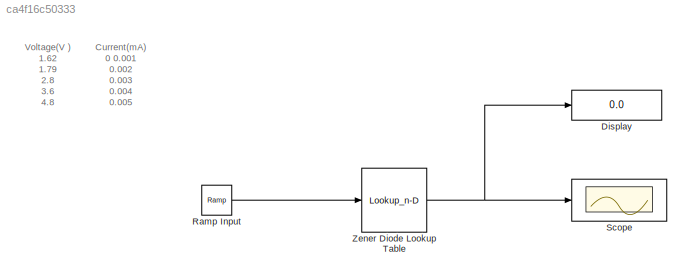
MODEL slx_ca4f16c50333
KIND model
CONFIG AbsTol = auto
CONFIG EnableMultiTasking = off
CONFIG FixedStep = 1
CONFIG MaxStep = auto
CONFIG MinStep = auto
CONFIG RelTol = 1e-3
CONFIG SampleTimeConstraint = Unconstrained
CONFIG Solver = FixedStepAuto
CONFIG SolverName = FixedStepAuto
CONFIG StartTime = 0.0
CONFIG StopTime = 10.0
BLOCK [Reference]  Ramp Input  REF=simulink/Sources/Ramp
  Ports = [0, 1]
  SourceBlock = simulink/Sources/Ramp
  SourceProductBaseCode = SL
  SourceType = Ramp
BLOCK [Display] Display
  Decimation = 1
  Ports = [1]
BLOCK [Scope] Scope
  Floating = off
  NumInputPorts = 1
  Ports = [1]
  ScopeSpecificationString = Simulink.scopes.TimeScopeBlockCfg('CurrentConfiguration', extmgr.ConfigurationSet(extmgr.Configuration('Core','General UI',true),extmgr.Configuration('Core','Source UI',true),extmgr.Configuration('Sources','WiredSimulink',true),extmgr.Configuration('Visuals','Time Domain',true,'SerializedDisplays',{struct('MinYLimReal','0.565','MaxYLimReal','11.115','YLabelReal','','MinYLimMag','0.565','MaxYLimMag...<+1393ch>
BLOCK [Lookup_n-D] Zener Diode Lookup Table
  BreakpointsForDimension1 = [0 0.001 0.002 0.003 0.004 0.005 0.006 0.008 0.011 0.014 0.017]
  InternalRulePriority = Speed
  NumberOfTableDimensions = 1
  Ports = [1, 1]
  RndMeth = Simplest
  Table = [1.62 1.79 2.8 3.6 4.8 5.2 5.45 5.6 5.75 5.86 5.96]
ANNOTATION (root): Current(mA) 0 0.001 0.002 0.003 0.004 0.005 0.006 0.008 0.011 0.014 0.017
ANNOTATION (root): Voltage(V ) 1.62 1.79 2.8 3.6 4.8 5.2 5.45 5.6 5.75 5.86
LINE  Ramp Input:1 -> Zener Diode Lookup Table:1
NET Zener Diode Lookup Table:1 -> Display:1, Scope:1
note: NET lines group one-source signal fan-out (src -> all destinations, sorted); 1:1 wires keep LINE
